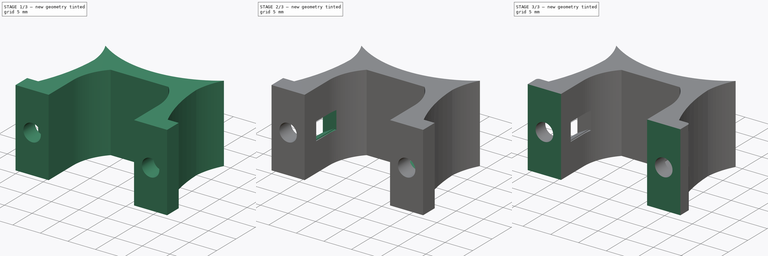
[diagram: build sequence overview — one tinted view per stage of 3, left to right]
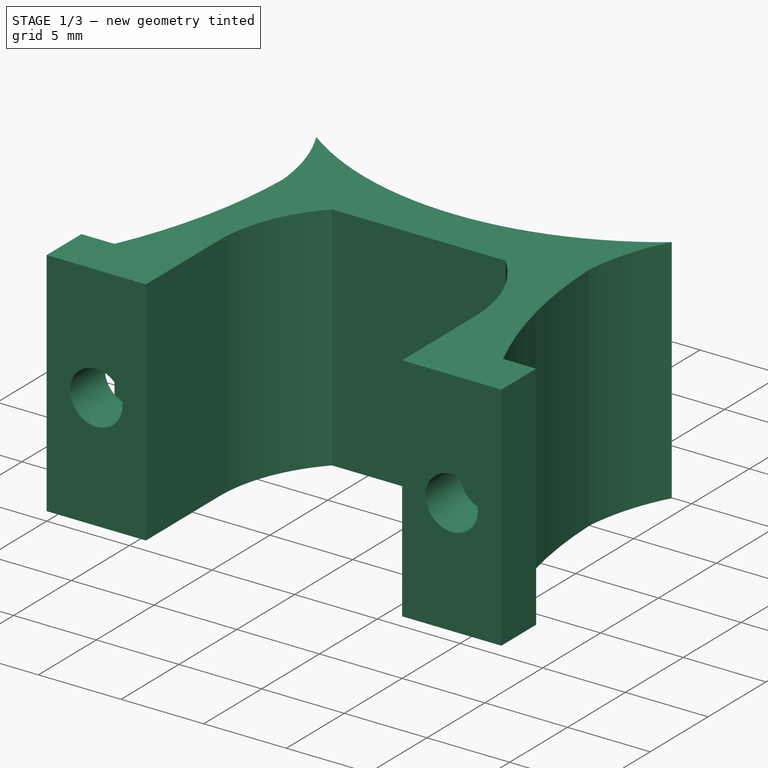
[diagram: stage 1 of 3 — iso view after this stage's code; geometry added in this stage tinted green]
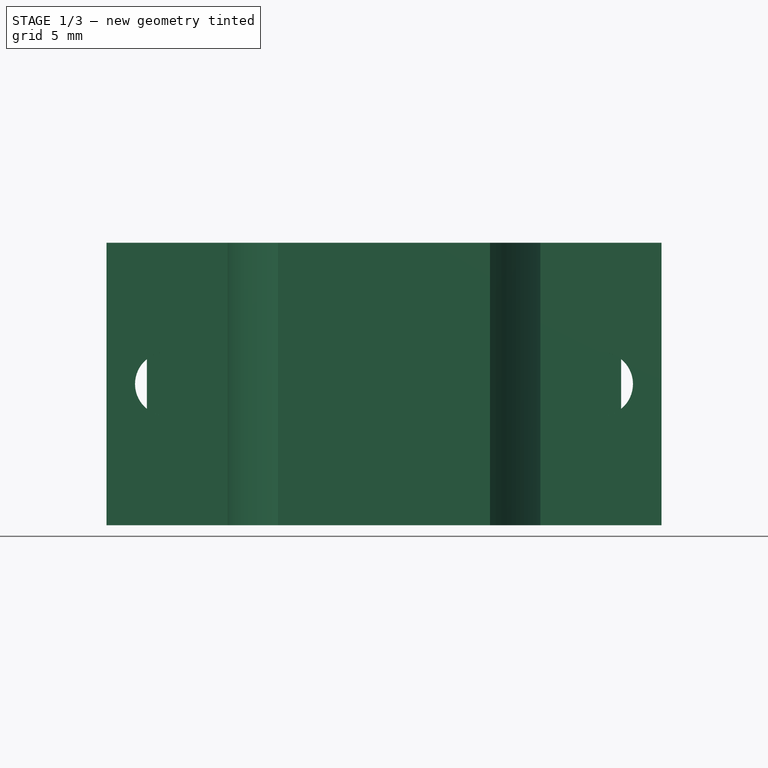
[diagram: stage 1 of 3 — front view after this stage's code; geometry added in this stage tinted green]
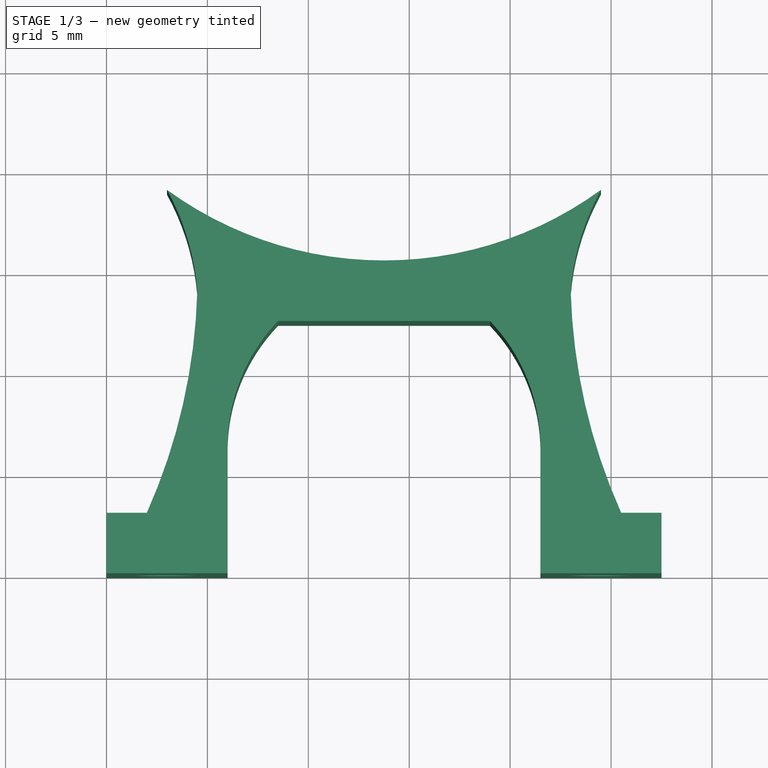
[diagram: stage 1 of 3 — top view after this stage's code; geometry added in this stage tinted green]
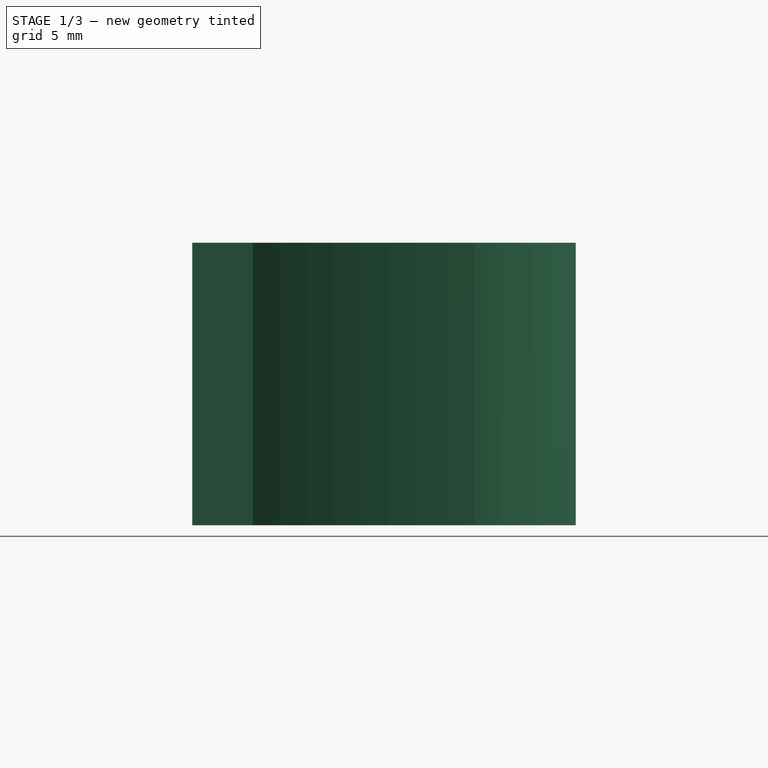
[diagram: stage 1 of 3 — right view after this stage's code; geometry added in this stage tinted green]
FCSTD DOCUMENT  (FreeCAD 1.0R39285 (Git))
Label: BraquetMotorProFast
License: All rights reserved
LicenseURL: https://en.wikipedia.org/wiki/All_rights_reserved
objects: Sketcher::SketchObject×4, PartDesign::Pocket×4, PartDesign::Pad×1, PartDesign::Fillet×1, PartDesign::Body×1, App::Part×1
note: 27 computed .brp shape members not serialized (recipe doc carries the construction recipe); baked Part::Feature solids carry a one-line shape summary decoded from their .brp

FEATURE [Sketcher::SketchObject] Sketch  label="BaseDeLado"
  ArcFitTolerance = 1e-06
  AttachmentSupport = -> [XY_Plane001]
  FullyConstrained = true
  MakeInternals = false
  MapMode = 5
  sketch-geometry (38):
    g0: LineSegment StartX=0 StartY=0 StartZ=0 EndX=6 EndY=0 EndZ=0
    g1: LineSegment StartX=0 StartY=0 StartZ=0 EndX=0 EndY=3 EndZ=0
    g2: LineSegment [constr] StartX=6 StartY=0 StartZ=0 EndX=21.5 EndY=0 EndZ=0
    g3: LineSegment StartX=21.5 StartY=0 StartZ=0 EndX=27.5 EndY=0 EndZ=0
    g4: LineSegment StartX=27.5 StartY=0 StartZ=0 EndX=27.5 EndY=3 EndZ=0
    g5: LineSegment StartX=0 StartY=3 StartZ=0 EndX=2 EndY=3 EndZ=0
    g6: LineSegment StartX=27.5 StartY=3 StartZ=0 EndX=25.5 EndY=3 EndZ=0
    g7: LineSegment StartX=6 StartY=0 StartZ=0 EndX=6 EndY=6.25 EndZ=0
    g8: LineSegment StartX=21.5 StartY=0 StartZ=0 EndX=21.5 EndY=6.25 EndZ=0
    g9: LineSegment [constr] StartX=6 StartY=6.25 StartZ=0 EndX=6 EndY=12.5 EndZ=0
    g10: LineSegment [constr] StartX=21.5 StartY=12.5 StartZ=0 EndX=21.5 EndY=6.25 EndZ=0
    g11: LineSegment [constr] StartX=6 StartY=12.5 StartZ=0 EndX=8.5 EndY=12.5 EndZ=0
    g12: LineSegment [constr] StartX=21.5 StartY=12.5 StartZ=0 EndX=19 EndY=12.5 EndZ=0
    g13: LineSegment StartX=8.5 StartY=12.5 StartZ=0 EndX=19 EndY=12.5 EndZ=0
    g14: ArcOfCircle CenterX=15 CenterY=6.27501 CenterZ=0 NormalX=0 NormalY=0 NormalZ=1 AngleXU=0 Radius=9 StartAngle=2.3778 EndAngle=3.14437
    g15: ArcOfCircle CenterX=12.5 CenterY=6.27501 CenterZ=0 NormalX=0 NormalY=0 NormalZ=1 AngleXU=0 Radius=9 StartAngle=6.28041 EndAngle=7.04698
    g16: LineSegment [constr] StartX=8.5 StartY=12.5 StartZ=0 EndX=13.75 EndY=12.5 EndZ=0
    g17: LineSegment [constr] StartX=13.75 StartY=12.5 StartZ=0 EndX=13.75 EndY=15.5 EndZ=0
    g18: LineSegment [constr] StartX=25.5 StartY=3 StartZ=0 EndX=24.5 EndY=3 EndZ=0
    g19: LineSegment [constr] StartX=24.5 StartY=3 StartZ=0 EndX=24.5 EndY=19 EndZ=0
    g20: LineSegment [constr] StartX=21.5 StartY=12.5 StartZ=0 EndX=21.5 EndY=9.375 EndZ=0
    g21: LineSegment [constr] StartX=21.5 StartY=12.5 StartZ=0 EndX=21.5 EndY=14 EndZ=0
    g22: LineSegment [constr] StartX=21.5 StartY=14 StartZ=0 EndX=23 EndY=14 EndZ=0
    g23: LineSegment [constr] StartX=21.5 StartY=9.375 StartZ=0 EndX=23.5 EndY=9.375 EndZ=0
    g24: ArcOfCircle CenterX=51.9059 CenterY=14.7854 CenterZ=0 NormalX=0 NormalY=0 NormalZ=1 AngleXU=0 Radius=28.9166 StartAngle=3.16876 EndAngle=3.56138
    g25: ArcOfCircle CenterX=35.4099 CenterY=13.002 CenterZ=0 NormalX=0 NormalY=0 NormalZ=1 AngleXU=0 Radius=12.45 StartAngle=2.63892 EndAngle=3.06135
    g26: LineSegment [constr] StartX=19 StartY=12.5 StartZ=0 EndX=19 EndY=16.25 EndZ=0
    g27: LineSegment [constr] StartX=6 StartY=12.5 StartZ=0 EndX=6 EndY=16.25 EndZ=0
    g28: LineSegment [constr] StartX=2 StartY=3 StartZ=0 EndX=3 EndY=3 EndZ=0
    g29: LineSegment [constr] StartX=3 StartY=3 StartZ=0 EndX=3 EndY=19 EndZ=0
    g30: LineSegment [constr] StartX=6 StartY=12.5 StartZ=0 EndX=6 EndY=9.375 EndZ=0
    g31: LineSegment [constr] StartX=6 StartY=9.375 StartZ=0 EndX=4 EndY=9.375 EndZ=0
    g32: LineSegment [constr] StartX=6 StartY=12.5 StartZ=0 EndX=6 EndY=14 EndZ=0
    g33: LineSegment [constr] StartX=6 StartY=14 StartZ=0 EndX=4.5 EndY=14 EndZ=0
    g34: ArcOfCircle CenterX=-24.4059 CenterY=14.7854 CenterZ=0 NormalX=0 NormalY=0 NormalZ=1 AngleXU=0 Radius=28.9166 StartAngle=5.8634 EndAngle=6.25602
    g35: ArcOfCircle CenterX=-7.90987 CenterY=13.0012 CenterZ=0 NormalX=0 NormalY=0 NormalZ=1 AngleXU=0 Radius=12.45 StartAngle=0.080309 EndAngle=0.502679
    g36: LineSegment [constr] StartX=8.5 StartY=12.5 StartZ=0 EndX=8.5 EndY=16.25 EndZ=0
    g37: ArcOfCircle CenterX=13.7495 CenterY=33.7604 CenterZ=0 NormalX=0 NormalY=0 NormalZ=1 AngleXU=0 Radius=18.2604 StartAngle=4.08296 EndAngle=5.34188
  constraints (112):
    c: Distance(g0) = 6
    c: Coincident(g0,g-1)
    c: PointOnObject(g0,g-1)
    c: Distance(g1) = 3
    c: Coincident(g1,g0)
    c: PointOnObject(g1,g-2)
    c: Distance(g2) = 15.5
    c: Coincident(g2,g0)
    c: PointOnObject(g2,g-1)
    c: Distance(g3) = 6
    c: Coincident(g3,g2)
    c: PointOnObject(g3,g-1)
    c: Distance(g4) = 3
    c: Coincident(g4,g3)
    c: Vertical(g4)
    c: Distance(g5) = 2
    c: Coincident(g5,g1)
    c: Horizontal(g5)
    c: Distance(g6) = 2
    c: Coincident(g6,g4)
    c: Horizontal(g6)
    c: Distance(g7) = 6.25
    c: Coincident(g7,g0)
    c: Vertical(g7)
    c: Distance(g8) = 6.25
    c: Coincident(g8,g2)
    c: Vertical(g8)
    c: Distance(g9) = 6.25
    c: Coincident(g9,g7)
    c: Vertical(g9)
    c: Coincident(g10,g8)
    c: Distance(g11) = 2.5
    c: Coincident(g11,g9)
    c: Horizontal(g11)
    c: Distance(g12) = 2.5
    c: Coincident(g12,g10)
    c: Horizontal(g12)
    c: Coincident(g13,g11)
    c: Coincident(g13,g12)
    c: Horizontal(g13)
    c: DistanceX(g13,g13) = 10.5
    c: Coincident(g14,g7)
    c: Coincident(g14,g11)
    c: Coincident(g15,g12)
    c: Coincident(g15,g8)
    c: Radius(g14) = 9
    c: Radius(g15) = 9
    c: Coincident(g16,g11)
    c: Symmetric(g13,g13,g16)
    c: Distance(g17) = 3
    c: Coincident(g17,g16)
    c: Vertical(g17)
    c: Distance(g18) = 1
    c: Coincident(g18,g6)
    c: Horizontal(g18)
    c: Coincident(g19,g18)
    c: Vertical(g19)
    c: DistanceY(g19,g19) = 16
    c: Coincident(g20,g10)
    c: Symmetric(g10,g10,g20)
    c: Distance(g21) = 1.5
    c: Coincident(g21,g10)
    c: Vertical(g21)
    c: Distance(g22) = 1.5
    c: Coincident(g22,g21)
    c: Horizontal(g22)
    c: Distance(g23) = 2
    c: Coincident(g23,g20)
    c: Horizontal(g23)
    c: PointOnObject(g23,g24)
    c: Coincident(g24,g22)
    c: Coincident(g24,g6)
    c: Coincident(g25,g22)
    c: Coincident(g25,g19)
    c: Distance(g26) = 3.75
    c: Coincident(g26,g12)
    c: Vertical(g26)
    c: Radius(g25) = 12.45
    c: Distance(g27) = 3.75
    c: Coincident(g27,g9)
    c: Vertical(g27)
    c: Distance(g28) = 1
    c: Coincident(g28,g5)
    c: Horizontal(g28)
    c: Distance(g29) = 16
    c: Coincident(g29,g28)
    c: Vertical(g29)
    c: Coincident(g30,g9)
    c: Symmetric(g9,g9,g30)
    c: Distance(g31) = 2
    c: Coincident(g31,g30)
    c: Horizontal(g31)
    c: Distance(g32) = 1.5
    c: Coincident(g32,g9)
    c: PointOnObject(g32,g27)
    c: Distance(g33) = 1.5
    c: Coincident(g33,g32)
    c: Horizontal(g33)
    c: PointOnObject(g31,g34)
    c: Coincident(g34,g33)
    c: Coincident(g34,g5)
    c: Coincident(g35,g34)
    c: PointOnObject(g35,g29)
    c: Radius(g35) = 12.45
    c: Angle(g35) = 0.42237
    c: Distance(g36) = 3.75
    c: Coincident(g36,g11)
    c: Vertical(g36)
    c: PointOnObject(g35,g37)
    c: PointOnObject(g17,g37)
    c: Coincident(g37,g19)
    c: PointOnObject(g37,g29)
FEATURE [PartDesign::Pad] Pad  label="Cuerpo"
  Direction = (0,0,1)
  Length = 14
  Length2 = 10
  Profile = -> Sketch
  ReferenceAxis = -> Sketch [N_Axis]
  Refine = true
  Suppressed = false
  Type = 0
FEATURE [Sketcher::SketchObject] Sketch002  label="Agujero3_17"
  ArcFitTolerance = 1e-06
  AttachmentSupport = -> [Pad]
  FullyConstrained = false
  MakeInternals = false
  MapMode = 5
  Placement = pos=(0,0,0) rot=(1,0,0;1.5708rad)
  sketch-geometry (7):
    g0: LineSegment [constr] StartX=0 StartY=0 StartZ=0 EndX=3 EndY=0 EndZ=0
    g1: LineSegment [constr] StartX=3 StartY=1.58579e-09 StartZ=0 EndX=2.99985 EndY=7 EndZ=0
    g2: LineSegment [constr] StartX=2.99985 StartY=7 StartZ=0 EndX=24.4999 EndY=7 EndZ=0
    g3: LineSegment [constr] StartX=24.4999 StartY=7 StartZ=0 EndX=24.4999 EndY=0 EndZ=0
    g4: LineSegment [constr] StartX=24.4999 StartY=0 StartZ=0 EndX=27.4999 EndY=0 EndZ=0
    g5: Circle CenterX=2.99985 CenterY=7 CenterZ=0 NormalX=0 NormalY=0 NormalZ=1 AngleXU=0 Radius=1.585
    g6: Circle CenterX=24.4999 CenterY=7 CenterZ=0 NormalX=0 NormalY=0 NormalZ=1 AngleXU=0 Radius=1.585
  constraints (18):
    c: Distance(g0) = 3
    c: Coincident(g0,g-1)
    c: PointOnObject(g0,g-1)
    c: Distance(g1) = 7
    c: Distance(g2) = 21.5
    c: Coincident(g2,g1)
    c: Horizontal(g2)
    c: Distance(g3) = 7
    c: Coincident(g3,g2)
    c: Vertical(g3)
    c: Distance(g4) = 3
    c: Coincident(g4,g3)
    c: PointOnObject(g4,g-1)
    c: Horizontal(g4)
    c: Diameter(g5) = 3.17
    c: Coincident(g5,g1)
    c: Diameter(g6) = 3.17
    c: Coincident(g6,g2)
FEATURE [PartDesign::Pocket] Pocket  label="AgujerosTornillosM3"
  BaseFeature = -> Pad
  Direction = (0,1,-2e-16)
  Length = 3
  Length2 = 5
  Profile = -> Sketch002
  ReferenceAxis = -> Sketch002 [N_Axis]
  Refine = true
  Suppressed = false
  Type = 0
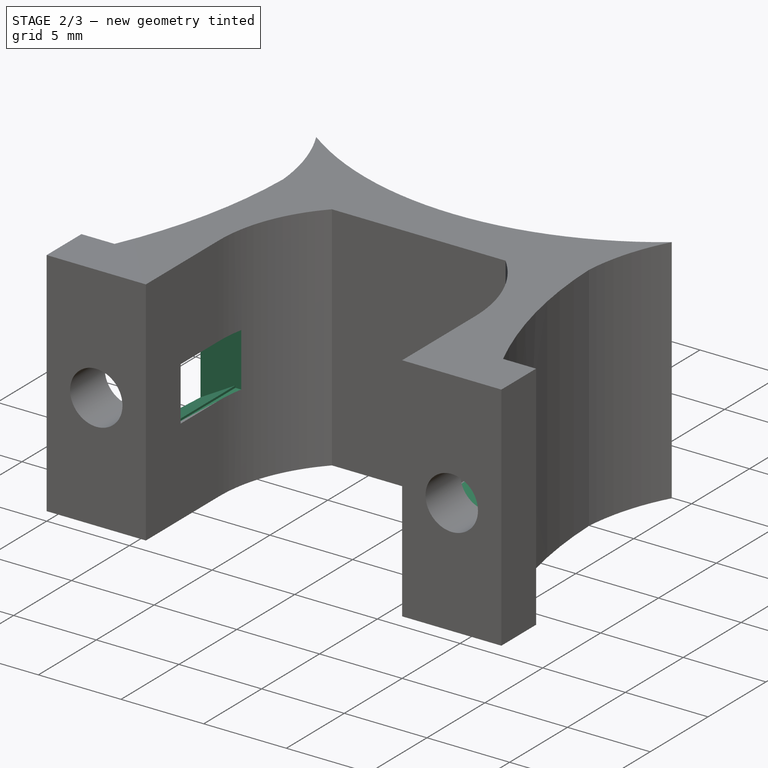
[diagram: stage 2 of 3 — iso view after this stage's code; geometry added in this stage tinted green]
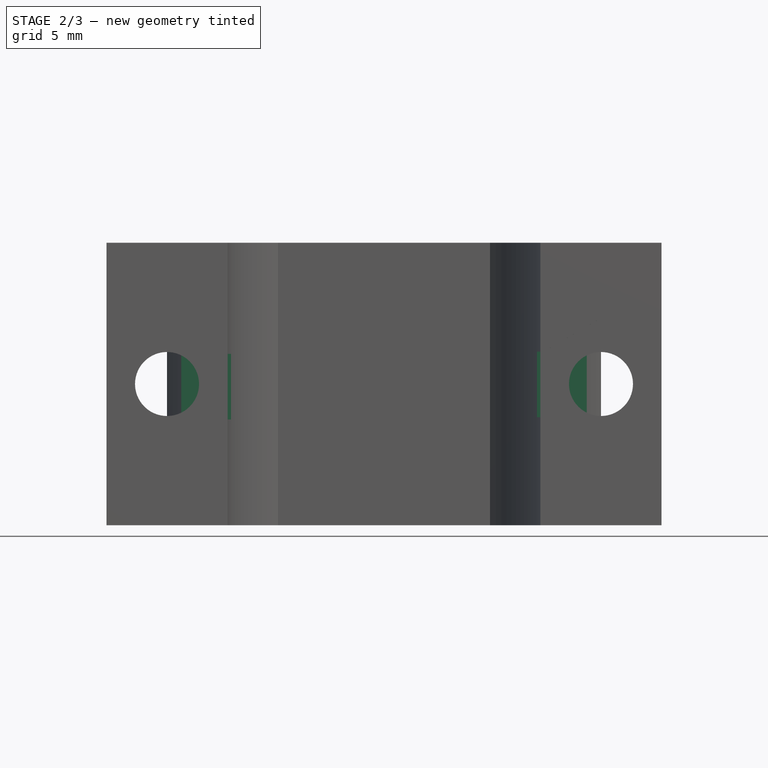
[diagram: stage 2 of 3 — front view after this stage's code; geometry added in this stage tinted green]
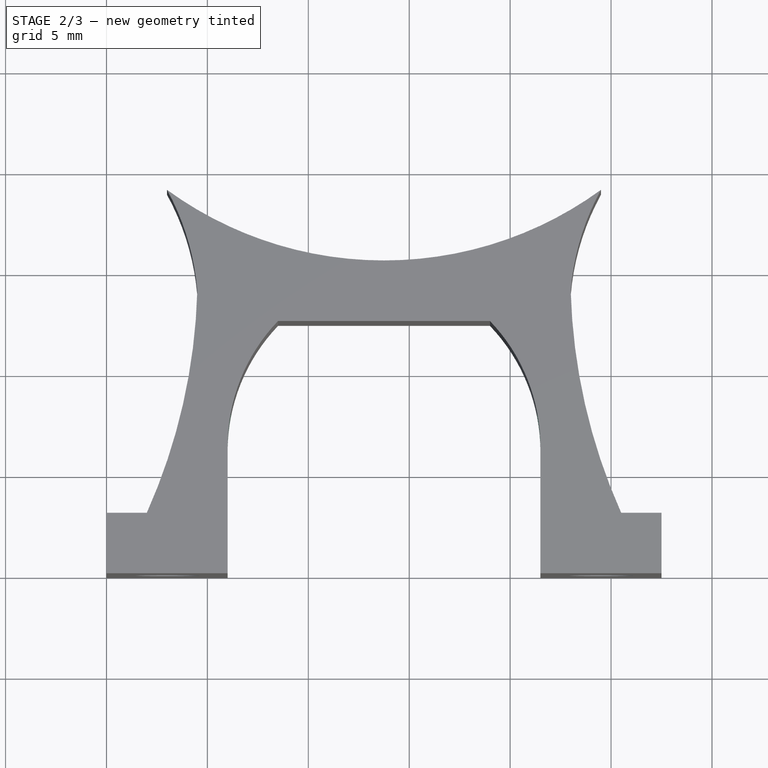
[diagram: stage 2 of 3 — top view after this stage's code; geometry added in this stage tinted green]
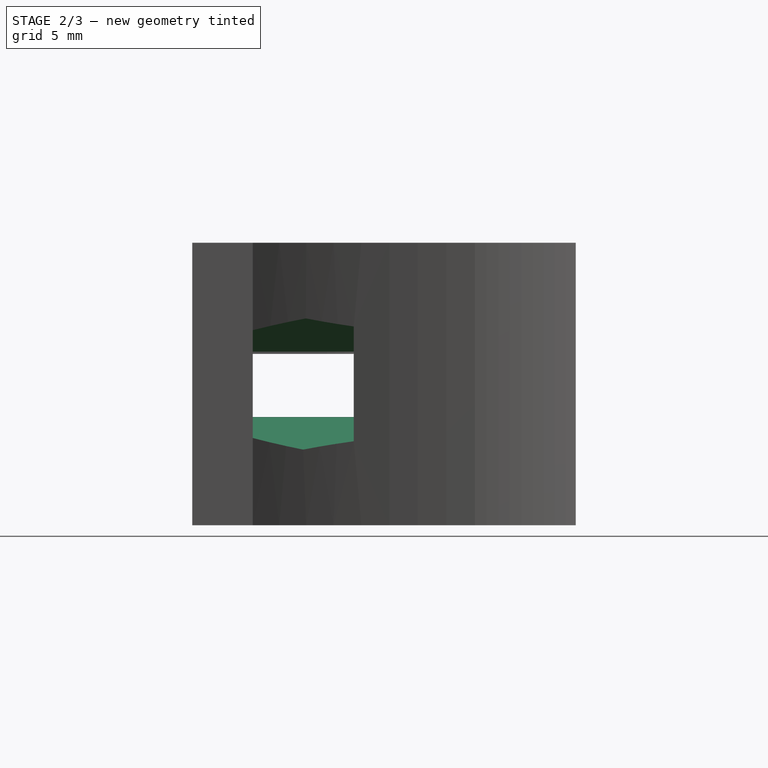
[diagram: stage 2 of 3 — right view after this stage's code; geometry added in this stage tinted green]
FEATURE [Sketcher::SketchObject] Sketch003  label="AgujeroTuerca"
  ArcFitTolerance = 1e-06
  AttachmentSupport = -> [Pocket]
  FullyConstrained = false
  MakeInternals = false
  MapMode = 5
  Placement = pos=(0,3,0) rot=(0,0.707107,0.707107;3.14159rad)
  sketch-geometry (17):
    g0: LineSegment [constr] StartX=0 StartY=0 StartZ=0 EndX=0 EndY=7 EndZ=0
    g1: LineSegment [constr] StartX=0 StartY=7 StartZ=0 EndX=-3 EndY=7 EndZ=0
    g2: LineSegment [constr] StartX=-3 StartY=7 StartZ=0 EndX=-24.5 EndY=7 EndZ=0
    g3: LineSegment StartX=-3.00825 StartY=10.25 StartZ=0 EndX=-5.8187 EndY=8.61785 EndZ=0
    g4: LineSegment StartX=-5.8187 StartY=8.61785 StartZ=0 EndX=-5.81045 EndY=5.36786 EndZ=0
    g5: LineSegment StartX=-5.81045 StartY=5.36786 StartZ=0 EndX=-2.99175 EndY=3.75001 EndZ=0
    g6: LineSegment StartX=-2.99175 StartY=3.75001 StartZ=0 EndX=-0.181302 EndY=5.38215 EndZ=0
    g7: LineSegment StartX=-0.181302 StartY=5.38215 StartZ=0 EndX=-0.189551 EndY=8.63214 EndZ=0
    g8: LineSegment StartX=-0.189551 StartY=8.63214 StartZ=0 EndX=-3.00825 EndY=10.25 EndZ=0
    g9: Circle [constr] CenterX=-3 CenterY=7 CenterZ=0 NormalX=0 NormalY=0 NormalZ=1 AngleXU=0 Radius=3.25
    g10: LineSegment StartX=-24.4767 StartY=10.2499 StartZ=0 EndX=-27.3028 EndY=8.64516 EndZ=0
    g11: LineSegment StartX=-27.3028 StartY=8.64516 StartZ=0 EndX=-27.3262 EndY=5.39525 EndZ=0
    g12: LineSegment StartX=-27.3262 StartY=5.39525 StartZ=0 EndX=-24.5233 EndY=3.75008 EndZ=0
    g13: LineSegment StartX=-24.5233 StartY=3.75008 StartZ=0 EndX=-21.6972 EndY=5.35484 EndZ=0
    g14: LineSegment StartX=-21.6972 StartY=5.35484 StartZ=0 EndX=-21.6738 EndY=8.60475 EndZ=0
    g15: LineSegment StartX=-21.6738 StartY=8.60475 StartZ=0 EndX=-24.4767 EndY=10.2499 EndZ=0
    g16: Circle [constr] CenterX=-24.5 CenterY=7 CenterZ=0 NormalX=0 NormalY=0 NormalZ=1 AngleXU=0 Radius=3.25
  constraints (39):
    c: Distance(g0) = 7
    c: Coincident(g0,g-1)
    c: PointOnObject(g0,g-2)
    c: Distance(g1) = 3
    c: Coincident(g1,g0)
    c: Horizontal(g1)
    c: Distance(g2) = 21.5
    c: Coincident(g2,g1)
    c: Horizontal(g2)
    c: Coincident(g3,g4)
    c: Coincident(g4,g5)
    c: Coincident(g5,g6)
    c: Coincident(g6,g7)
    c: Coincident(g7,g8)
    c: Coincident(g8,g3)
    c: Equal(g3, g4-g8) x5
    c: PointOnObject(g3,g9)
    c: PointOnObject(g4,g9)
    c: PointOnObject(g5,g9)
    c: PointOnObject(g6,g9)
    c: PointOnObject(g7,g9)
    c: PointOnObject(g8,g9)
    c: Radius(g9) = 3.25
    c: Coincident(g9,g1)
    c: Coincident(g10,g11)
    c: Coincident(g11,g12)
    c: Coincident(g12,g13)
    c: Coincident(g13,g14)
    c: Coincident(g14,g15)
    c: Coincident(g15,g10)
    c: Equal(g10, g11-g15) x5
    c: PointOnObject(g10,g16)
    c: PointOnObject(g11,g16)
    c: PointOnObject(g12,g16)
    c: PointOnObject(g13,g16)
    c: PointOnObject(g14,g16)
    c: PointOnObject(g15,g16)
    c: Radius(g16) = 3.25
    c: Coincident(g16,g2)
FEATURE [PartDesign::Pocket] Pocket001  label="MoldeTuercaM3"
  BaseFeature = -> Pocket
  Direction = (0,-1,2e-16)
  Length = 5
  Length2 = 5
  Profile = -> Sketch003
  ReferenceAxis = -> Sketch003 [N_Axis]
  Refine = true
  Reversed = true
  Suppressed = false
  Type = 0
FEATURE [PartDesign::Pocket] Pocket002
  BaseFeature = -> Pocket001
  Direction = (-0.999974,0,-0.00717841)
  Length = 0
  Length2 = 5
  Profile = -> Pocket001 [Face30]
  Refine = true
  Suppressed = false
  Type = 3
  UpToFace = -> Pocket001 [Face29]
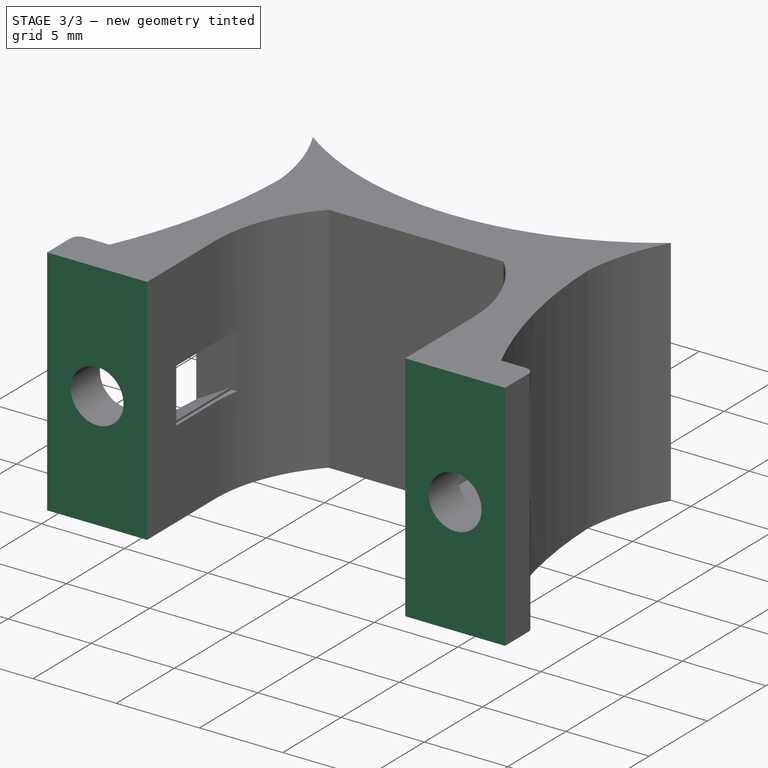
[diagram: stage 3 of 3 — iso view after this stage's code; geometry added in this stage tinted green]
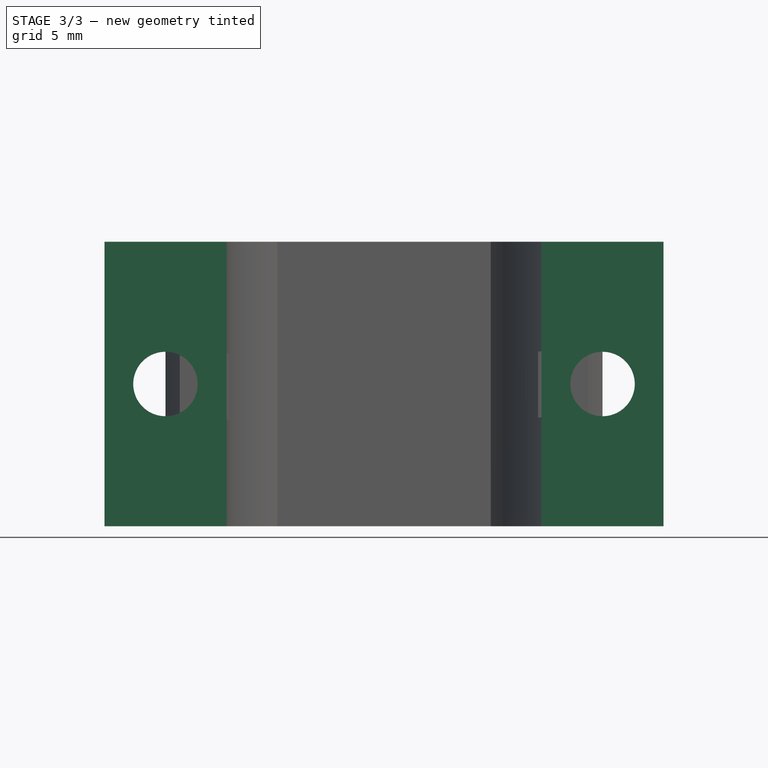
[diagram: stage 3 of 3 — front view after this stage's code; geometry added in this stage tinted green]
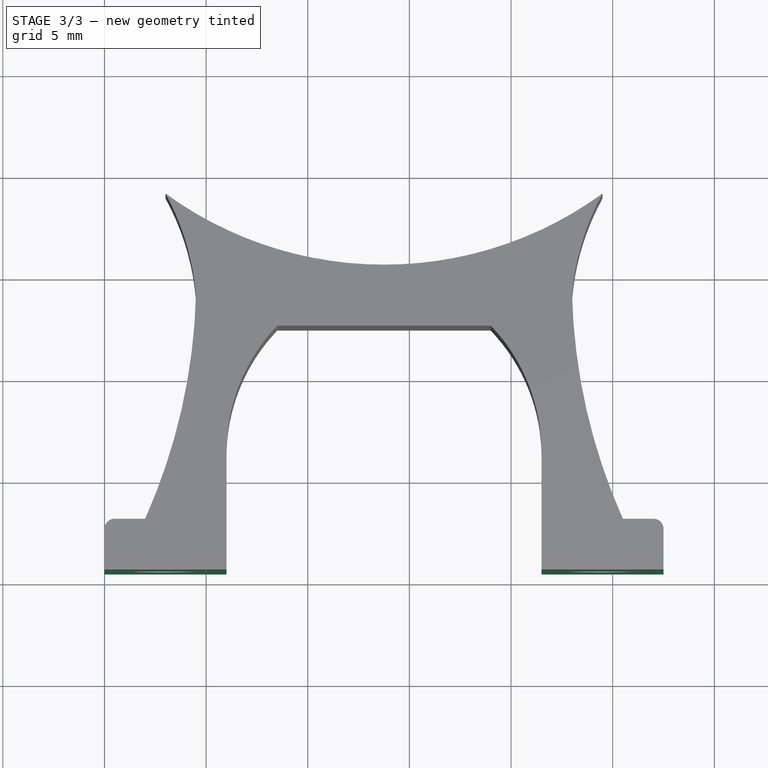
[diagram: stage 3 of 3 — top view after this stage's code; geometry added in this stage tinted green]
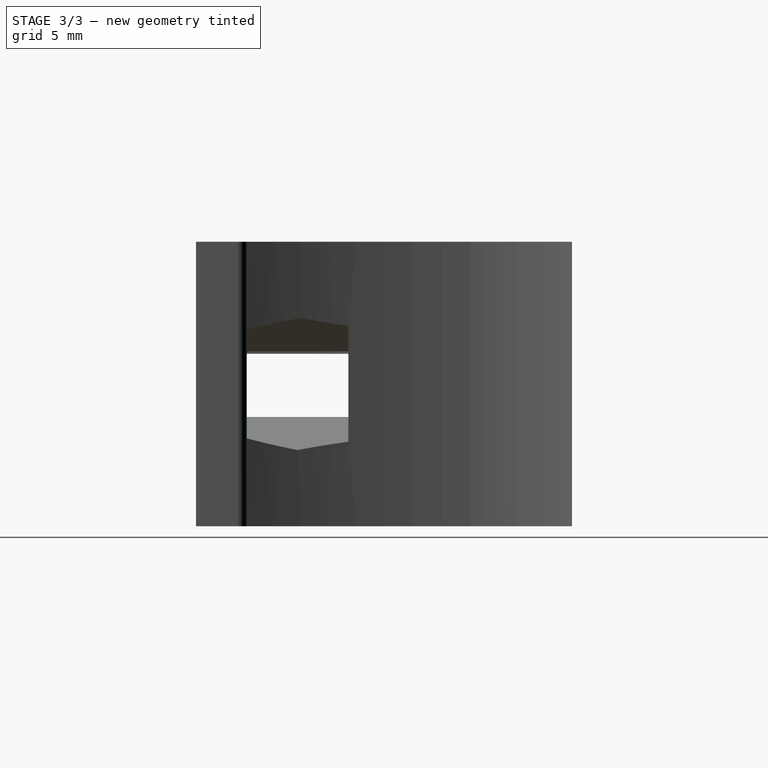
[diagram: stage 3 of 3 — right view after this stage's code; geometry added in this stage tinted green]
FEATURE [PartDesign::Fillet] Fillet  label="Chanfle"
  Base = -> Pocket002 [Edge18,Edge50]
  BaseFeature = -> Pocket002
  Radius = 0.5
  Refine = true
  SupportTransform = false
  Suppressed = false
  UseAllEdges = false
FEATURE [Sketcher::SketchObject] Sketch004
  ArcFitTolerance = 1e-06
  AttachmentSupport = -> [Fillet]
  ExternalGeometry = -> [Fillet]
  FullyConstrained = true
  MakeInternals = false
  MapMode = 5
  Placement = pos=(0,0,0) rot=(1,0,0;1.5708rad)
  sketch-geometry (4):
    g0: LineSegment StartX=0 StartY=0 StartZ=0 EndX=27.5 EndY=0 EndZ=0
    g1: LineSegment StartX=27.5 StartY=0 StartZ=0 EndX=27.5 EndY=14 EndZ=0
    g2: LineSegment StartX=27.5 StartY=14 StartZ=0 EndX=0 EndY=14 EndZ=0
    g3: LineSegment StartX=0 StartY=14 StartZ=0 EndX=0 EndY=0 EndZ=0
  constraints (10):
    c: Coincident(g0,g1)
    c: Coincident(g1,g2)
    c: Coincident(g2,g3)
    c: Coincident(g3,g0)
    c: Horizontal(g0)
    c: Horizontal(g2)
    c: Vertical(g1)
    c: Vertical(g3)
    c: Coincident(g0,g-1)
    c: Coincident(g1,g-3)
FEATURE [PartDesign::Pocket] Pocket003
  BaseFeature = -> Fillet
  Direction = (0,1,-2e-16)
  Length = 0.5
  Length2 = 5
  Profile = -> Sketch004
  ReferenceAxis = -> Sketch004 [N_Axis]
  Refine = true
  Suppressed = false
  Type = 0
FEATURE [PartDesign::Body] Body  label="BraquetMotor"
  AllowCompound = false
  Group = -> [Sketch,Pad,Sketch002,Pocket,Sketch003,Pocket001,Pocket002,Fillet,Sketch004,Pocket003]
  Origin = -> Origin001
  Tip = -> Pocket003
FEATURE [App::Part] Part  label="BraquetMotor001"
  Group = -> [Body]
  Origin = -> Origin
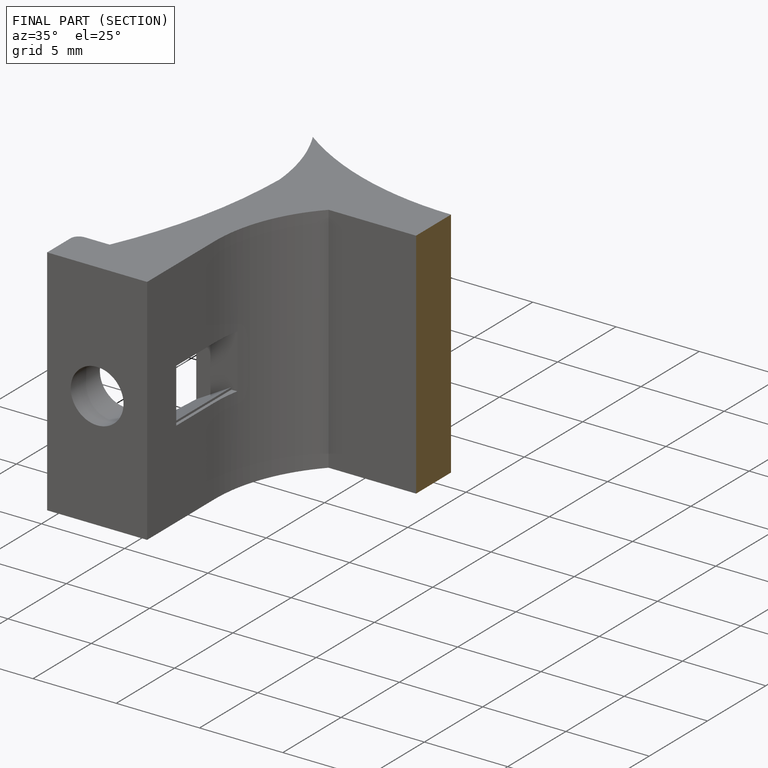
[diagram: finished part — half-section view (interior)]
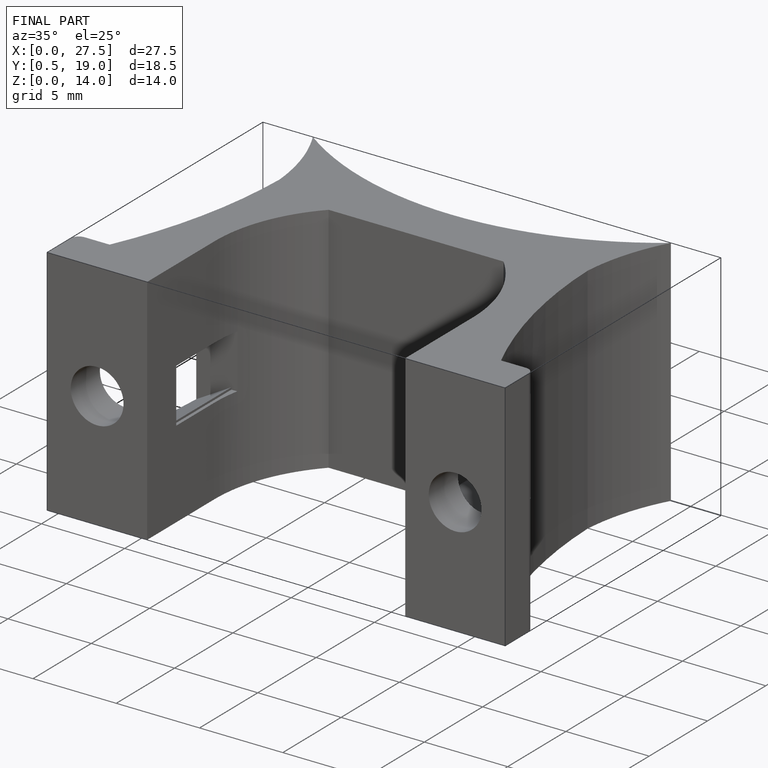
[diagram: finished part — iso view with bounding-box wireframe]
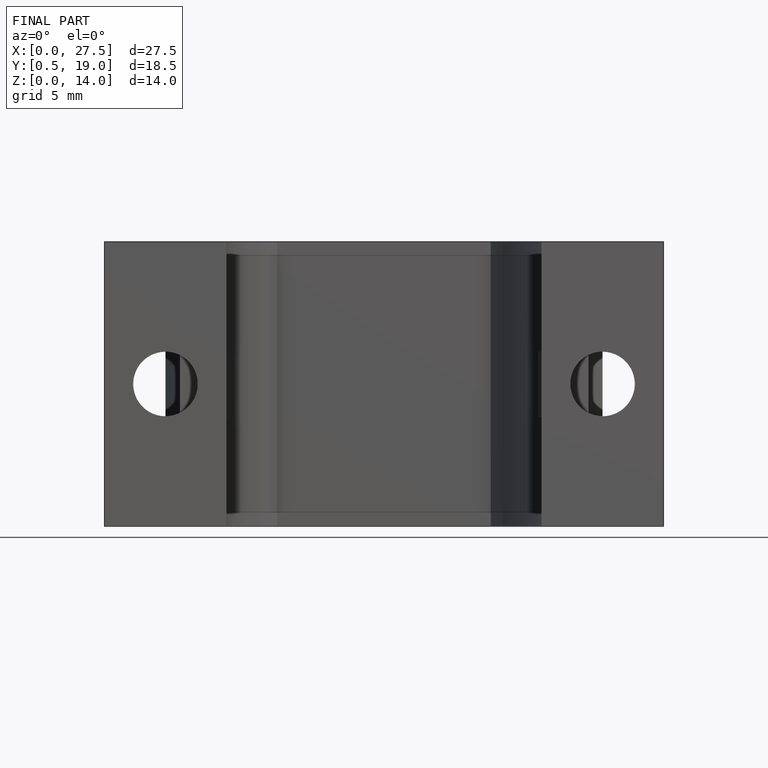
[diagram: finished part — front view with bounding-box wireframe]
